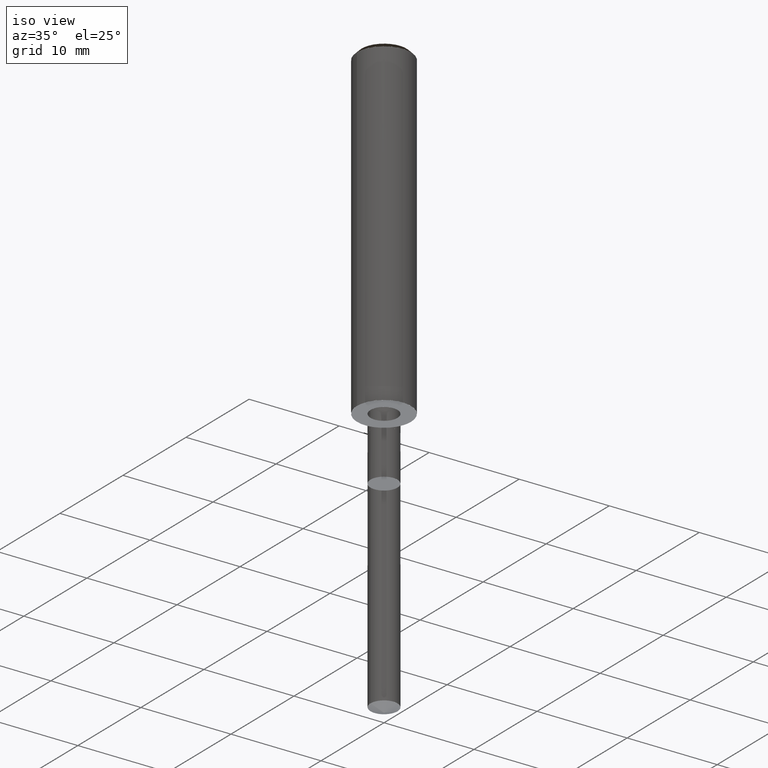
[diagram: clean part render]
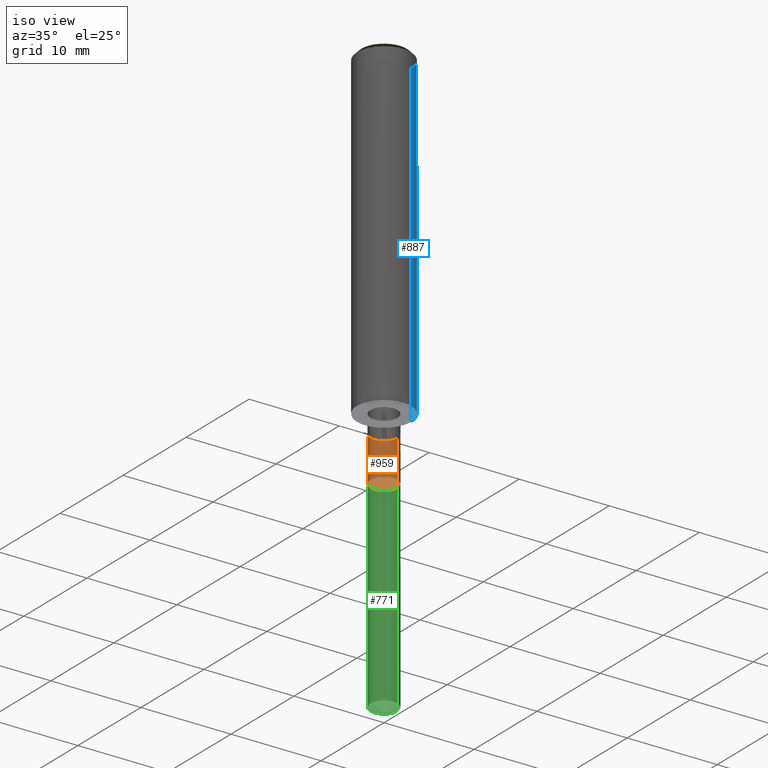
[diagram: same view with three faces highlighted in distinct colors, each labeled with its STEP entity id]
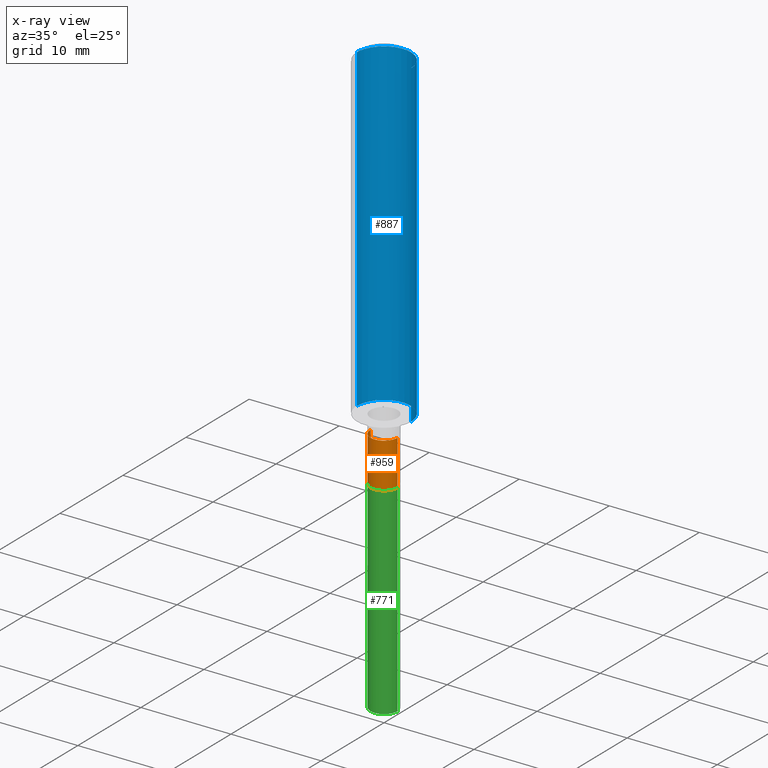
[diagram: x-ray of the same camera — body ghosted, the three highlighted faces saturated]
A machine part, iso view with three faces highlighted in distinct colors.
The next image is the same camera in x-ray (body ghosted, the three faces saturated) — at least one of them is partly hidden behind the body in this view.
Their STEP definitions:

[orange] entity #959 — the highlighted face is a freeform B-spline surface patch.
#626=CARTESIAN_POINT('',(1.5,0.0,-7.0));
#630=CARTESIAN_POINT('',(-1.5,0.0,-7.0));
#635=CARTESIAN_POINT('',(-1.5,-1.5,-7.0));
#636=CARTESIAN_POINT('',(0.0,-1.5,-7.0));
#637=CARTESIAN_POINT('',(1.5,-1.5,-7.0));
#638=CARTESIAN_POINT('',(1.5,0.0,-2.0));
#642=CARTESIAN_POINT('',(-1.5,0.0,-2.0));
#664=CARTESIAN_POINT('',(-1.5,-1.5,-2.0));
#665=CARTESIAN_POINT('',(0.0,-1.5,-2.0));
#666=CARTESIAN_POINT('',(1.5,-1.5,-2.0));
#940=(
BOUNDED_SURFACE()
B_SPLINE_SURFACE(1,2,(
(#630,#635,#636,#637,#626),
(#642,#664,#665,#666,#638)
), .UNSPECIFIED.,.F.,.F.,.F.)
B_SPLINE_SURFACE_WITH_KNOTS((2,2),(3,2,3),(
0.0,1.0),(
0.0,0.5,1.0), .UNSPECIFIED.)
GEOMETRIC_REPRESENTATION_ITEM()
RATIONAL_B_SPLINE_SURFACE(((1.0,0.707106781187,1.0,0.707106781187,1.0),
(1.0,0.707106781187,1.0,0.707106781187,1.0)
))
REPRESENTATION_ITEM('')
SURFACE()
);
#941=(
BOUNDED_CURVE()
B_SPLINE_CURVE(2,(#626,#637,#636,#635,#630),.UNSPECIFIED.,.F.,.F.)
B_SPLINE_CURVE_WITH_KNOTS((3,2,3),
(0.0,0.5,1.0),.UNSPECIFIED.)
CURVE()
GEOMETRIC_REPRESENTATION_ITEM()
RATIONAL_B_SPLINE_CURVE((1.0,0.707106781187,1.0,0.707106781187,1.0))
REPRESENTATION_ITEM('')
);
#942=(
BOUNDED_CURVE()
B_SPLINE_CURVE(1,(#630,#642),.UNSPECIFIED.,.F.,.F.)
B_SPLINE_CURVE_WITH_KNOTS((2,2),
(0.0,1.0),.UNSPECIFIED.)
CURVE()
GEOMETRIC_REPRESENTATION_ITEM()
RATIONAL_B_SPLINE_CURVE((1.0,1.0))
REPRESENTATION_ITEM('')
);
#943=(
BOUNDED_CURVE()
B_SPLINE_CURVE(2,(#642,#664,#665,#666,#638),.UNSPECIFIED.,.F.,.F.)
B_SPLINE_CURVE_WITH_KNOTS((3,2,3),
(0.0,0.5,1.0),.UNSPECIFIED.)
CURVE()
GEOMETRIC_REPRESENTATION_ITEM()
RATIONAL_B_SPLINE_CURVE((1.0,0.707106781187,1.0,0.707106781187,1.0))
REPRESENTATION_ITEM('')
);
#944=(
BOUNDED_CURVE()
B_SPLINE_CURVE(1,(#638,#626),.UNSPECIFIED.,.F.,.F.)
B_SPLINE_CURVE_WITH_KNOTS((2,2),
(0.0,1.0),.UNSPECIFIED.)
CURVE()
GEOMETRIC_REPRESENTATION_ITEM()
RATIONAL_B_SPLINE_CURVE((1.0,1.0))
REPRESENTATION_ITEM('')
);
#945=VERTEX_POINT('',#626);
#946=VERTEX_POINT('',#630);
#947=VERTEX_POINT('',#638);
#948=VERTEX_POINT('',#642);
#949=EDGE_CURVE('',#945,#946,#941,.T.);
#950=EDGE_CURVE('',#946,#948,#942,.T.);
#951=EDGE_CURVE('',#948,#947,#943,.T.);
#952=EDGE_CURVE('',#947,#945,#944,.T.);
#953=ORIENTED_EDGE('',*,*,#949,.T.);
#954=ORIENTED_EDGE('',*,*,#950,.T.);
#955=ORIENTED_EDGE('',*,*,#951,.T.);
#956=ORIENTED_EDGE('',*,*,#952,.T.);
#957=EDGE_LOOP('',(#953,#954,#955,#956));
#958=FACE_OUTER_BOUND('',#957,.T.);
#959=ADVANCED_FACE('',(#958),#940,.T.);

[blue] entity #887 — the highlighted face is a freeform B-spline surface patch.
#648=CARTESIAN_POINT('',(3.0,0.0,0.0));
#649=CARTESIAN_POINT('',(3.0,3.0,0.0));
#650=CARTESIAN_POINT('',(0.0,3.0,0.0));
#651=CARTESIAN_POINT('',(-3.0,3.0,0.0));
#652=CARTESIAN_POINT('',(-3.0,0.0,0.0));
#653=CARTESIAN_POINT('',(3.0,0.0,35.5));
#654=CARTESIAN_POINT('',(3.0,3.0,35.5));
#655=CARTESIAN_POINT('',(0.0,3.0,35.5));
#656=CARTESIAN_POINT('',(-3.0,3.0,35.5));
#657=CARTESIAN_POINT('',(-3.0,0.0,35.5));
#868=(
BOUNDED_SURFACE()
B_SPLINE_SURFACE(1,2,(
(#648,#649,#650,#651,#652),
(#653,#654,#655,#656,#657)
), .UNSPECIFIED.,.F.,.F.,.F.)
B_SPLINE_SURFACE_WITH_KNOTS((2,2),(3,2,3),(
0.0,1.0),(
0.0,0.5,1.0), .UNSPECIFIED.)
GEOMETRIC_REPRESENTATION_ITEM()
RATIONAL_B_SPLINE_SURFACE(((1.0,0.707106781187,1.0,0.707106781187,1.0),
(1.0,0.707106781187,1.0,0.707106781187,1.0)
))
REPRESENTATION_ITEM('')
SURFACE()
);
#869=(
BOUNDED_CURVE()
B_SPLINE_CURVE(2,(#652,#651,#650,#649,#648),.UNSPECIFIED.,.F.,.F.)
B_SPLINE_CURVE_WITH_KNOTS((3,2,3),
(0.0,0.5,1.0),.UNSPECIFIED.)
CURVE()
GEOMETRIC_REPRESENTATION_ITEM()
RATIONAL_B_SPLINE_CURVE((1.0,0.707106781187,1.0,0.707106781187,1.0))
REPRESENTATION_ITEM('')
);
#870=(
BOUNDED_CURVE()
B_SPLINE_CURVE(1,(#648,#653),.UNSPECIFIED.,.F.,.F.)
B_SPLINE_CURVE_WITH_KNOTS((2,2),
(0.0,1.0),.UNSPECIFIED.)
CURVE()
GEOMETRIC_REPRESENTATION_ITEM()
RATIONAL_B_SPLINE_CURVE((1.0,1.0))
REPRESENTATION_ITEM('')
);
#871=(
BOUNDED_CURVE()
B_SPLINE_CURVE(2,(#653,#654,#655,#656,#657),.UNSPECIFIED.,.F.,.F.)
B_SPLINE_CURVE_WITH_KNOTS((3,2,3),
(0.0,0.5,1.0),.UNSPECIFIED.)
CURVE()
GEOMETRIC_REPRESENTATION_ITEM()
RATIONAL_B_SPLINE_CURVE((1.0,0.707106781187,1.0,0.707106781187,1.0))
REPRESENTATION_ITEM('')
);
#872=(
BOUNDED_CURVE()
B_SPLINE_CURVE(1,(#657,#652),.UNSPECIFIED.,.F.,.F.)
B_SPLINE_CURVE_WITH_KNOTS((2,2),
(0.0,1.0),.UNSPECIFIED.)
CURVE()
GEOMETRIC_REPRESENTATION_ITEM()
RATIONAL_B_SPLINE_CURVE((1.0,1.0))
REPRESENTATION_ITEM('')
);
#873=VERTEX_POINT('',#648);
#874=VERTEX_POINT('',#652);
#875=VERTEX_POINT('',#653);
#876=VERTEX_POINT('',#657);
#877=EDGE_CURVE('',#874,#873,#869,.T.);
#878=EDGE_CURVE('',#873,#875,#870,.T.);
#879=EDGE_CURVE('',#875,#876,#871,.T.);
#880=EDGE_CURVE('',#876,#874,#872,.T.);
#881=ORIENTED_EDGE('',*,*,#877,.T.);
#882=ORIENTED_EDGE('',*,*,#878,.T.);
#883=ORIENTED_EDGE('',*,*,#879,.T.);
#884=ORIENTED_EDGE('',*,*,#880,.T.);
#885=EDGE_LOOP('',(#881,#882,#883,#884));
#886=FACE_OUTER_BOUND('',#885,.T.);
#887=ADVANCED_FACE('',(#886),#868,.T.);

[green] entity #771 — the highlighted face is a freeform B-spline surface patch.
#621=CARTESIAN_POINT('',(1.5,0.0,-29.454044648601));
#625=CARTESIAN_POINT('',(-1.5,0.0,-29.454044648601));
#626=CARTESIAN_POINT('',(1.5,0.0,-7.0));
#630=CARTESIAN_POINT('',(-1.5,0.0,-7.0));
#632=CARTESIAN_POINT('',(-1.5,-1.5,-29.454044648601));
#633=CARTESIAN_POINT('',(0.0,-1.5,-29.454044648601));
#634=CARTESIAN_POINT('',(1.5,-1.5,-29.454044648601));
#635=CARTESIAN_POINT('',(-1.5,-1.5,-7.0));
#636=CARTESIAN_POINT('',(0.0,-1.5,-7.0));
#637=CARTESIAN_POINT('',(1.5,-1.5,-7.0));
#752=(
BOUNDED_SURFACE()
B_SPLINE_SURFACE(1,2,(
(#625,#632,#633,#634,#621),
(#630,#635,#636,#637,#626)
), .UNSPECIFIED.,.F.,.F.,.F.)
B_SPLINE_SURFACE_WITH_KNOTS((2,2),(3,2,3),(
0.0,1.0),(
0.0,0.5,1.0), .UNSPECIFIED.)
GEOMETRIC_REPRESENTATION_ITEM()
RATIONAL_B_SPLINE_SURFACE(((1.0,0.707106781187,1.0,0.707106781187,1.0),
(1.0,0.707106781187,1.0,0.707106781187,1.0)
))
REPRESENTATION_ITEM('')
SURFACE()
);
#753=(
BOUNDED_CURVE()
B_SPLINE_CURVE(2,(#621,#634,#633,#632,#625),.UNSPECIFIED.,.F.,.F.)
B_SPLINE_CURVE_WITH_KNOTS((3,2,3),
(0.0,0.5,1.0),.UNSPECIFIED.)
CURVE()
GEOMETRIC_REPRESENTATION_ITEM()
RATIONAL_B_SPLINE_CURVE((1.0,0.707106781187,1.0,0.707106781187,1.0))
REPRESENTATION_ITEM('')
);
#754=(
BOUNDED_CURVE()
B_SPLINE_CURVE(1,(#625,#630),.UNSPECIFIED.,.F.,.F.)
B_SPLINE_CURVE_WITH_KNOTS((2,2),
(0.0,1.0),.UNSPECIFIED.)
CURVE()
GEOMETRIC_REPRESENTATION_ITEM()
RATIONAL_B_SPLINE_CURVE((1.0,1.0))
REPRESENTATION_ITEM('')
);
#755=(
BOUNDED_CURVE()
B_SPLINE_CURVE(2,(#630,#635,#636,#637,#626),.UNSPECIFIED.,.F.,.F.)
B_SPLINE_CURVE_WITH_KNOTS((3,2,3),
(0.0,0.5,1.0),.UNSPECIFIED.)
CURVE()
GEOMETRIC_REPRESENTATION_ITEM()
RATIONAL_B_SPLINE_CURVE((1.0,0.707106781187,1.0,0.707106781187,1.0))
REPRESENTATION_ITEM('')
);
#756=(
BOUNDED_CURVE()
B_SPLINE_CURVE(1,(#626,#621),.UNSPECIFIED.,.F.,.F.)
B_SPLINE_CURVE_WITH_KNOTS((2,2),
(0.0,1.0),.UNSPECIFIED.)
CURVE()
GEOMETRIC_REPRESENTATION_ITEM()
RATIONAL_B_SPLINE_CURVE((1.0,1.0))
REPRESENTATION_ITEM('')
);
#757=VERTEX_POINT('',#621);
#758=VERTEX_POINT('',#625);
#759=VERTEX_POINT('',#626);
#760=VERTEX_POINT('',#630);
#761=EDGE_CURVE('',#757,#758,#753,.T.);
#762=EDGE_CURVE('',#758,#760,#754,.T.);
#763=EDGE_CURVE('',#760,#759,#755,.T.);
#764=EDGE_CURVE('',#759,#757,#756,.T.);
#765=ORIENTED_EDGE('',*,*,#761,.T.);
#766=ORIENTED_EDGE('',*,*,#762,.T.);
#767=ORIENTED_EDGE('',*,*,#763,.T.);
#768=ORIENTED_EDGE('',*,*,#764,.T.);
#769=EDGE_LOOP('',(#765,#766,#767,#768));
#770=FACE_OUTER_BOUND('',#769,.T.);
#771=ADVANCED_FACE('',(#770),#752,.T.);